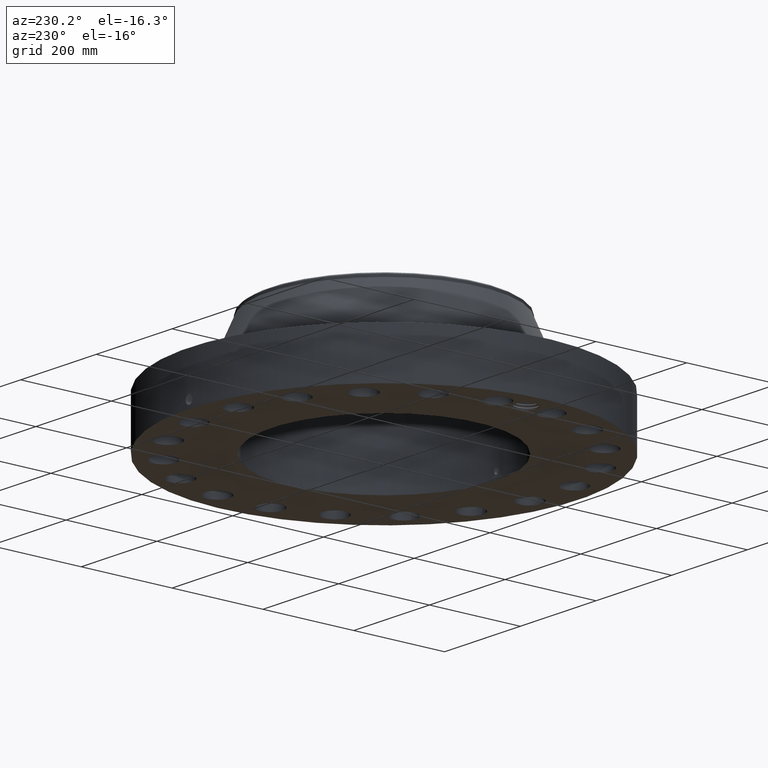
[diagram: clean part render]
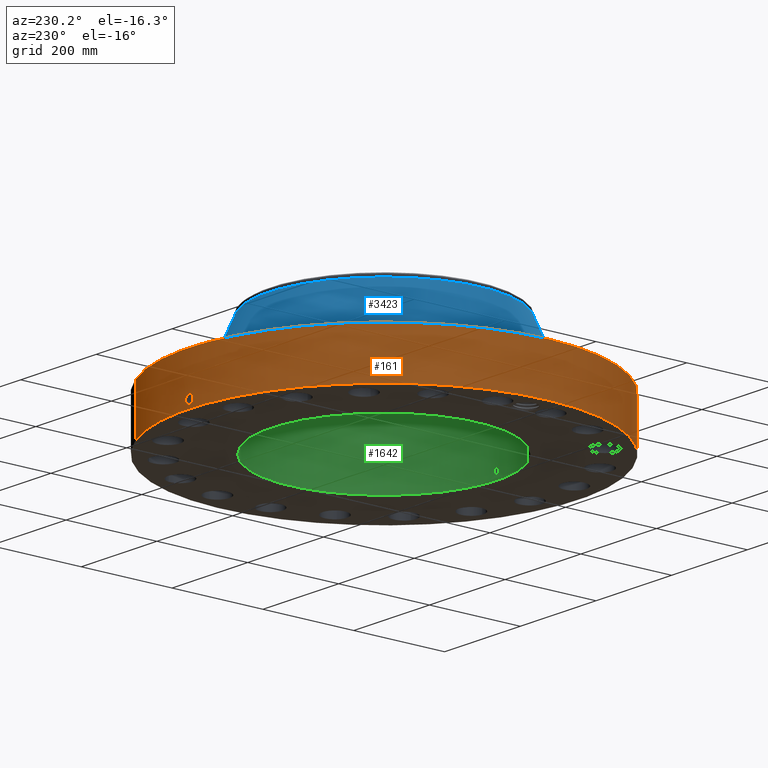
[diagram: same view with three faces highlighted in distinct colors, each labeled with its STEP entity id]
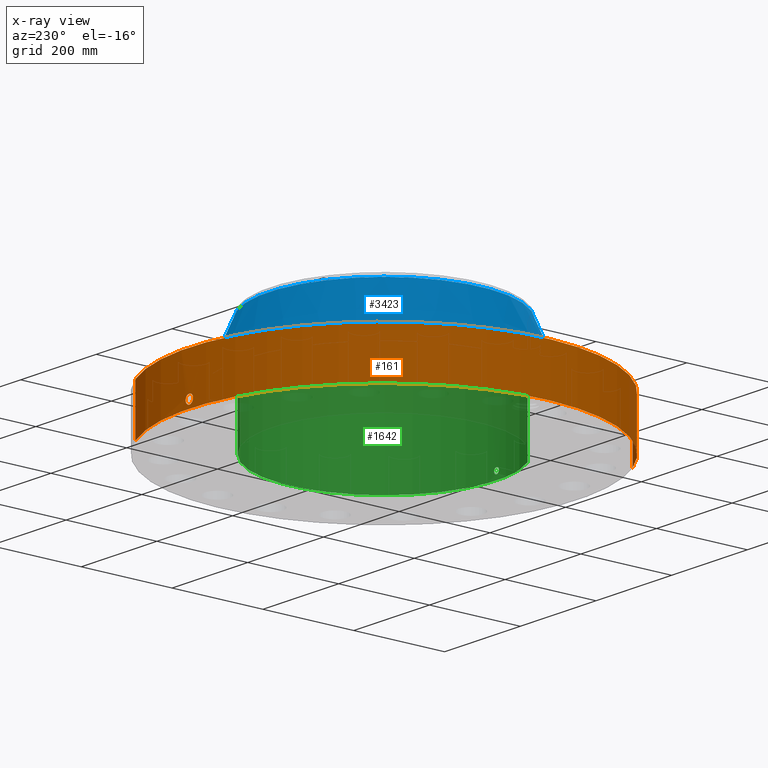
[diagram: x-ray of the same camera — body ghosted, the three highlighted faces saturated]
A machine part, auxiliary view with three faces highlighted in distinct colors.
The next image is the same camera in x-ray (body ghosted, the three faces saturated) — at least one of them is partly hidden behind the body in this view.
Their STEP definitions:

[orange] entity #161 — the highlighted cylindrical surface (partial cylindrical patch) has radius 428.625 mm, axis along (0, 0, -1).
#38=AXIS2_PLACEMENT_3D('Cylinder Axis2P3D',#35,#36,#37) ;
#42=AXIS2_PLACEMENT_3D('Circle Axis2P3D',#40,#41,$) ;
#58=AXIS2_PLACEMENT_3D('Circle Axis2P3D',#56,#57,$) ;
#35=CARTESIAN_POINT('Axis2P3D Location',(0.,0.,5.12500000002)) ;
#40=CARTESIAN_POINT('Axis2P3D Location',(0.,0.,0.250000000001)) ;
#44=CARTESIAN_POINT('Vertex',(-8.09030596398,-14.809205732,0.250000000001)) ;
#46=CARTESIAN_POINT('Vertex',(8.09030596398,14.809205732,0.250000000001)) ;
#49=CARTESIAN_POINT('Line Origine',(-8.09030596398,-14.809205732,2.37500000001)) ;
#53=CARTESIAN_POINT('Vertex',(-8.09030596398,-14.809205732,4.50000000002)) ;
#56=CARTESIAN_POINT('Axis2P3D Location',(0.,0.,4.50000000002)) ;
#60=CARTESIAN_POINT('Vertex',(8.09030596398,14.809205732,4.50000000002)) ;
#63=CARTESIAN_POINT('Line Origine',(8.09030596398,14.809205732,2.37500000001)) ;
#75=CARTESIAN_POINT('Control Point',(-0.000715966345755,16.8749999849,1.2941184615)) ;
#76=CARTESIAN_POINT('Control Point',(-0.0188587449881,16.8749992151,1.29408182617)) ;
#77=CARTESIAN_POINT('Control Point',(-0.0369983738352,16.8749689585,1.29264716763)) ;
#78=CARTESIAN_POINT('Control Point',(-0.0549211481594,16.874910627,1.28983155179)) ;
#79=CARTESIAN_POINT('Vertex',(-0.000715647544343,16.8749999849,1.29411851071)) ;
#81=CARTESIAN_POINT('Vertex',(-0.0549124867546,16.8749109068,1.28983293024)) ;
#85=CARTESIAN_POINT('Control Point',(-0.0549123924265,16.8749106555,1.28983238615)) ;
#86=CARTESIAN_POINT('Control Point',(-0.0954921253447,16.8747786056,1.28546586304)) ;
#87=CARTESIAN_POINT('Control Point',(-0.135448629343,16.8744965787,1.27372463292)) ;
#88=CARTESIAN_POINT('Control Point',(-0.172272160945,16.874120638,1.25537261567)) ;
#89=CARTESIAN_POINT('Vertex',(-0.172272160945,16.874120638,1.25537261567)) ;
#93=CARTESIAN_POINT('Control Point',(-0.0311176967246,16.8749713093,0.531196981948)) ;
#94=CARTESIAN_POINT('Control Point',(-0.0716971628149,16.8748964802,0.536329675347)) ;
#95=CARTESIAN_POINT('Control Point',(-0.111483887554,16.874701135,0.546717742949)) ;
#96=CARTESIAN_POINT('Control Point',(-0.149542289852,16.8743962607,0.562204334577)) ;
#97=CARTESIAN_POINT('Control Point',(-0.239358933954,16.8734348165,0.613172299099)) ;
#98=CARTESIAN_POINT('Control Point',(-0.308457455131,16.8722463849,0.690007880991)) ;
#99=CARTESIAN_POINT('Control Point',(-0.340329822535,16.8715879855,0.743761261318)) ;
#100=CARTESIAN_POINT('Control Point',(-0.374944138477,16.8708389442,0.841073392895)) ;
#101=CARTESIAN_POINT('Control Point',(-0.377318743419,16.8707797936,0.942367080266)) ;
#102=CARTESIAN_POINT('Control Point',(-0.372953924759,16.870879792,0.982925897651)) ;
#103=CARTESIAN_POINT('Control Point',(-0.350404708175,16.871382695,1.07569920771)) ;
#104=CARTESIAN_POINT('Control Point',(-0.300669425375,16.8723616565,1.15725850933)) ;
#105=CARTESIAN_POINT('Control Point',(-0.263812673009,16.8730156963,1.19834070171)) ;
#106=CARTESIAN_POINT('Control Point',(-0.220228293508,16.8736310417,1.23147235781)) ;
#107=CARTESIAN_POINT('Control Point',(-0.172272160945,16.874120638,1.25537261567)) ;
#108=CARTESIAN_POINT('Vertex',(-0.0311176967246,16.8749713093,0.531196981948)) ;
#112=CARTESIAN_POINT('Control Point',(-0.0311176967246,16.8749713093,0.531196981948)) ;
#113=CARTESIAN_POINT('Control Point',(-0.0207404090337,16.8749904452,0.530875685859)) ;
#114=CARTESIAN_POINT('Control Point',(-0.0103551827877,16.8750000017,0.530935093628)) ;
#115=CARTESIAN_POINT('Control Point',(2.72878355189E-006,16.8750000001,0.531374667806)) ;
#116=CARTESIAN_POINT('Vertex',(2.72878354257E-006,16.8750000001,0.531374667806)) ;
#120=CARTESIAN_POINT('Control Point',(0.19254051346,16.8739015392,0.587568175017)) ;
#121=CARTESIAN_POINT('Control Point',(0.148973082226,16.8743986675,0.562131731074)) ;
#122=CARTESIAN_POINT('Control Point',(0.101110473963,16.8747954933,0.543811579033)) ;
#123=CARTESIAN_POINT('Control Point',(0.0508033336883,16.8749999919,0.533530568523)) ;
#124=CARTESIAN_POINT('Control Point',(2.72878355189E-006,16.8750000001,0.531374667806)) ;
#125=CARTESIAN_POINT('Vertex',(0.19254051346,16.8739015392,0.587568175017)) ;
#129=CARTESIAN_POINT('Control Point',(0.19254051346,16.8739015392,0.587568175017)) ;
#130=CARTESIAN_POINT('Control Point',(0.249309488364,16.8732537739,0.620712216443)) ;
#131=CARTESIAN_POINT('Control Point',(0.2992627226,16.8724450136,0.665183203359)) ;
#132=CARTESIAN_POINT('Control Point',(0.339248744879,16.8716253423,0.719381497317)) ;
#133=CARTESIAN_POINT('Control Point',(0.383251893499,16.8706561065,0.817654652316)) ;
#134=CARTESIAN_POINT('Control Point',(0.391654931468,16.8704531723,0.922932638717)) ;
#135=CARTESIAN_POINT('Control Point',(0.389478215896,16.8705050932,0.963131364629)) ;
#136=CARTESIAN_POINT('Control Point',(0.369875477663,16.8709644816,1.06613732617)) ;
#137=CARTESIAN_POINT('Control Point',(0.316342965312,16.8720886067,1.15688810311)) ;
#138=CARTESIAN_POINT('Control Point',(0.271808791401,16.8729258459,1.20451035156)) ;
#139=CARTESIAN_POINT('Control Point',(0.190945062085,16.874075654,1.26057047138)) ;
#140=CARTESIAN_POINT('Control Point',(0.0989266658285,16.8747569291,1.28784304801)) ;
#141=CARTESIAN_POINT('Control Point',(0.0660321750554,16.8749199747,1.29367514866)) ;
#142=CARTESIAN_POINT('Control Point',(0.0328634725872,16.8750000504,1.2957655117)) ;
#143=CARTESIAN_POINT('Control Point',(-2.58579355401E-005,16.875,1.2941529843)) ;
#144=CARTESIAN_POINT('Vertex',(-2.58579355491E-005,16.875,1.2941529843)) ;
#148=CARTESIAN_POINT('Control Point',(-0.000715647534762,16.8749999849,1.29411851069)) ;
#149=CARTESIAN_POINT('Control Point',(-0.000370777338297,16.8749999995,1.29413607331)) ;
#150=CARTESIAN_POINT('Control Point',(-2.58579404822E-005,16.875,1.29415298429)) ;
#36=DIRECTION('Axis2P3D Direction',(0.,0.,-0.0393700787402)) ;
#37=DIRECTION('Axis2P3D XDirection',(0.0188750212049,0.0345504945626,0.)) ;
#41=DIRECTION('Axis2P3D Direction',(0.,0.,-0.0393700787402)) ;
#50=DIRECTION('Vector Direction',(0.,0.,-0.0393700787402)) ;
#57=DIRECTION('Axis2P3D Direction',(0.,0.,-0.0393700787402)) ;
#64=DIRECTION('Vector Direction',(0.,0.,-0.0393700787402)) ;
#51=VECTOR('Line Direction',#50,0.0393700787402) ;
#65=VECTOR('Line Direction',#64,0.0393700787402) ;
#69=ORIENTED_EDGE('',*,*,#48,.F.) ;
#70=ORIENTED_EDGE('',*,*,#55,.T.) ;
#71=ORIENTED_EDGE('',*,*,#62,.T.) ;
#72=ORIENTED_EDGE('',*,*,#67,.F.) ;
#153=ORIENTED_EDGE('',*,*,#83,.T.) ;
#154=ORIENTED_EDGE('',*,*,#91,.T.) ;
#155=ORIENTED_EDGE('',*,*,#110,.F.) ;
#156=ORIENTED_EDGE('',*,*,#118,.T.) ;
#157=ORIENTED_EDGE('',*,*,#127,.F.) ;
#158=ORIENTED_EDGE('',*,*,#146,.T.) ;
#159=ORIENTED_EDGE('',*,*,#151,.F.) ;
#160=FACE_BOUND('',#152,.T.) ;
#161=ADVANCED_FACE('PartBody',(#73,#160),#39,.T.) ;
#74=B_SPLINE_CURVE_WITH_KNOTS('',3,(#75,#76,#77,#78),.UNSPECIFIED.,.F.,.U.,(4,4),(34.6167109055,36.6294797056),.UNSPECIFIED.) ;
#84=B_SPLINE_CURVE_WITH_KNOTS('',3,(#85,#86,#87,#88),.UNSPECIFIED.,.F.,.U.,(4,4),(0.,4.58603306128),.UNSPECIFIED.) ;
#92=B_SPLINE_CURVE_WITH_KNOTS('',5,(#93,#94,#95,#96,#97,#98,#99,#100,#101,#102,#103,#104,#105,#106,#107),.UNSPECIFIED.,.F.,.U.,(6,3,3,3,6),(0.,7.10840572545,17.9965871632,25.3424692491,35.2966301703),.UNSPECIFIED.) ;
#111=B_SPLINE_CURVE_WITH_KNOTS('',3,(#112,#113,#114,#115),.UNSPECIFIED.,.F.,.U.,(4,4),(0.,1.08252290649),.UNSPECIFIED.) ;
#119=B_SPLINE_CURVE_WITH_KNOTS('',4,(#120,#121,#122,#123,#124),.UNSPECIFIED.,.F.,.U.,(5,5),(0.,7.07900983834),.UNSPECIFIED.) ;
#128=B_SPLINE_CURVE_WITH_KNOTS('',5,(#129,#130,#131,#132,#133,#134,#135,#136,#137,#138,#139,#140,#141,#142,#143),.UNSPECIFIED.,.F.,.U.,(6,3,3,3,6),(0.,11.5300613596,18.6226470864,30.1177972835,36.2654958823),.UNSPECIFIED.) ;
#147=B_SPLINE_CURVE_WITH_KNOTS('',2,(#148,#149,#150),.UNSPECIFIED.,.F.,.U.,(3,3),(1.01879612386,1.04458516299),.UNSPECIFIED.) ;
#43=CIRCLE('generated circle',#42,16.8750000001) ;
#59=CIRCLE('generated circle',#58,16.8750000001) ;
#39=CYLINDRICAL_SURFACE('generated cylinder',#38,16.8750000001) ;
#48=EDGE_CURVE('',#45,#47,#43,.T.) ;
#55=EDGE_CURVE('',#45,#54,#52,.F.) ;
#62=EDGE_CURVE('',#54,#61,#59,.T.) ;
#67=EDGE_CURVE('',#47,#61,#66,.F.) ;
#83=EDGE_CURVE('',#80,#82,#74,.T.) ;
#91=EDGE_CURVE('',#82,#90,#84,.T.) ;
#110=EDGE_CURVE('',#109,#90,#92,.T.) ;
#118=EDGE_CURVE('',#109,#117,#111,.T.) ;
#127=EDGE_CURVE('',#126,#117,#119,.T.) ;
#146=EDGE_CURVE('',#126,#145,#128,.T.) ;
#151=EDGE_CURVE('',#80,#145,#147,.T.) ;
#68=EDGE_LOOP('',(#69,#70,#71,#72)) ;
#152=EDGE_LOOP('',(#153,#154,#155,#156,#157,#158,#159)) ;
#73=FACE_OUTER_BOUND('',#68,.T.) ;
#52=LINE('Line',#49,#51) ;
#66=LINE('Line',#63,#65) ;
#45=VERTEX_POINT('',#44) ;
#47=VERTEX_POINT('',#46) ;
#54=VERTEX_POINT('',#53) ;
#61=VERTEX_POINT('',#60) ;
#80=VERTEX_POINT('',#79) ;
#82=VERTEX_POINT('',#81) ;
#90=VERTEX_POINT('',#89) ;
#109=VERTEX_POINT('',#108) ;
#117=VERTEX_POINT('',#116) ;
#126=VERTEX_POINT('',#125) ;
#145=VERTEX_POINT('',#144) ;

[blue] entity #3423 — the highlighted conical surface has half-angle 23.672 deg.
#2641=AXIS2_PLACEMENT_3D('Circle Axis2P3D',#2639,#2640,$) ;
#3384=AXIS2_PLACEMENT_3D('Cone Axis2P3D',#3381,#3382,#3383) ;
#3414=AXIS2_PLACEMENT_3D('Circle Axis2P3D',#3412,#3413,$) ;
#2617=CARTESIAN_POINT('Vertex',(5.85786806298,10.7227555647,4.57181926733)) ;
#2624=CARTESIAN_POINT('Vertex',(-5.85786806298,-10.7227555647,4.57181926733)) ;
#2639=CARTESIAN_POINT('Axis2P3D Location',(0.,0.,4.57181926733)) ;
#3381=CARTESIAN_POINT('Axis2P3D Location',(0.,0.,9.63236722848)) ;
#3386=CARTESIAN_POINT('Line Origine',(5.32606172452,9.74929059182,7.1020932479)) ;
#3390=CARTESIAN_POINT('Vertex',(4.79425538606,8.77582561894,9.63236722848)) ;
#3397=CARTESIAN_POINT('Vertex',(-4.79425538606,-8.77582561894,9.63236722848)) ;
#3400=CARTESIAN_POINT('Line Origine',(-5.32606172452,-9.74929059182,7.1020932479)) ;
#3412=CARTESIAN_POINT('Axis2P3D Location',(0.,0.,9.63236722848)) ;
#2640=DIRECTION('Axis2P3D Direction',(0.,0.,-0.0393700787402)) ;
#3382=DIRECTION('Axis2P3D Direction',(0.,0.,-0.0393700787402)) ;
#3383=DIRECTION('Axis2P3D XDirection',(-0.0188750212049,-0.0345504945626,0.)) ;
#3387=DIRECTION('Vector Direction',(0.0075784362599,0.0138722345235,-0.0360573364683)) ;
#3401=DIRECTION('Vector Direction',(-0.0075784362599,-0.0138722345235,-0.0360573364683)) ;
#3413=DIRECTION('Axis2P3D Direction',(0.,0.,-0.0393700787402)) ;
#3388=VECTOR('Line Direction',#3387,0.0393700787402) ;
#3402=VECTOR('Line Direction',#3401,0.0393700787402) ;
#3418=ORIENTED_EDGE('',*,*,#2643,.F.) ;
#3419=ORIENTED_EDGE('',*,*,#3404,.T.) ;
#3420=ORIENTED_EDGE('',*,*,#3416,.T.) ;
#3421=ORIENTED_EDGE('',*,*,#3392,.F.) ;
#3423=ADVANCED_FACE('PartBody',(#3422),#3385,.T.) ;
#2642=CIRCLE('generated circle',#2641,12.2185148502) ;
#3415=CIRCLE('generated circle',#3414,10.) ;
#3385=CONICAL_SURFACE('Cone',#3384,10.,0.413160732606) ;
#2643=EDGE_CURVE('',#2625,#2618,#2642,.T.) ;
#3392=EDGE_CURVE('',#2618,#3391,#3389,.F.) ;
#3404=EDGE_CURVE('',#2625,#3398,#3403,.F.) ;
#3416=EDGE_CURVE('',#3398,#3391,#3415,.T.) ;
#3417=EDGE_LOOP('',(#3418,#3419,#3420,#3421)) ;
#3422=FACE_OUTER_BOUND('',#3417,.T.) ;
#3389=LINE('Line',#3386,#3388) ;
#3403=LINE('Line',#3400,#3402) ;
#2618=VERTEX_POINT('',#2617) ;
#2625=VERTEX_POINT('',#2624) ;
#3391=VERTEX_POINT('',#3390) ;
#3398=VERTEX_POINT('',#3397) ;

[green] entity #1642 — the highlighted cylindrical surface (partial cylindrical patch) has radius 247.65 mm, axis along (0, 0, -1).
#262=AXIS2_PLACEMENT_3D('Circle Axis2P3D',#260,#261,$) ;
#1573=AXIS2_PLACEMENT_3D('Cylinder Axis2P3D',#1570,#1571,#1572) ;
#1577=AXIS2_PLACEMENT_3D('Circle Axis2P3D',#1575,#1576,$) ;
#260=CARTESIAN_POINT('Axis2P3D Location',(0.,0.,0.250000000001)) ;
#264=CARTESIAN_POINT('Vertex',(4.67439900141,8.55642997847,0.250000000001)) ;
#266=CARTESIAN_POINT('Vertex',(-4.67439900141,-8.55642997847,0.250000000001)) ;
#1570=CARTESIAN_POINT('Axis2P3D Location',(0.,0.,5.12500000002)) ;
#1575=CARTESIAN_POINT('Axis2P3D Location',(0.,0.,10.)) ;
#1579=CARTESIAN_POINT('Vertex',(4.67439900141,8.55642997847,10.)) ;
#1581=CARTESIAN_POINT('Vertex',(-4.67439900141,-8.55642997847,10.)) ;
#1584=CARTESIAN_POINT('Line Origine',(4.67439900141,8.55642997847,5.12500000002)) ;
#1589=CARTESIAN_POINT('Line Origine',(-4.67439900141,-8.55642997847,5.12500000002)) ;
#1601=CARTESIAN_POINT('Control Point',(0.219395640473,-9.74753125431,0.820143615352)) ;
#1602=CARTESIAN_POINT('Control Point',(0.194442898516,-9.74809288603,0.774467927575)) ;
#1603=CARTESIAN_POINT('Control Point',(0.15760471227,-9.74884214693,0.735287680649)) ;
#1604=CARTESIAN_POINT('Control Point',(0.111106567491,-9.74957085037,0.706756306257)) ;
#1605=CARTESIAN_POINT('Control Point',(0.0336712214842,-9.75015062135,0.684117106418)) ;
#1606=CARTESIAN_POINT('Control Point',(-0.044673667,-9.74995025307,0.691943982572)) ;
#1607=CARTESIAN_POINT('Control Point',(-0.0703041570795,-9.74979470742,0.69795706374)) ;
#1608=CARTESIAN_POINT('Control Point',(-0.143961199206,-9.74910736012,0.725790774483)) ;
#1609=CARTESIAN_POINT('Control Point',(-0.203249380166,-9.74798546212,0.780508459)) ;
#1610=CARTESIAN_POINT('Control Point',(-0.232213577166,-9.74724968436,0.826749817723)) ;
#1611=CARTESIAN_POINT('Control Point',(-0.255841176916,-9.74664491075,0.904895695644)) ;
#1612=CARTESIAN_POINT('Control Point',(-0.24828159803,-9.74683824784,0.984258136247)) ;
#1613=CARTESIAN_POINT('Control Point',(-0.242047849551,-9.74699998843,1.01081873189)) ;
#1614=CARTESIAN_POINT('Control Point',(-0.23231474778,-9.74724047342,1.03620811736)) ;
#1615=CARTESIAN_POINT('Control Point',(-0.219395640473,-9.74753125431,1.05985638466)) ;
#1616=CARTESIAN_POINT('Vertex',(0.219395640473,-9.74753125431,0.820143615352)) ;
#1618=CARTESIAN_POINT('Vertex',(-0.219395640473,-9.74753125431,1.05985638466)) ;
#1622=CARTESIAN_POINT('Control Point',(-0.219395640473,-9.74753125431,1.05985638466)) ;
#1623=CARTESIAN_POINT('Control Point',(-0.194442898521,-9.74809288603,1.10553207242)) ;
#1624=CARTESIAN_POINT('Control Point',(-0.157604712286,-9.74884214693,1.14471231934)) ;
#1625=CARTESIAN_POINT('Control Point',(-0.11110656747,-9.74957085037,1.17324369376)) ;
#1626=CARTESIAN_POINT('Control Point',(-0.0336712214743,-9.75015062135,1.19588289359)) ;
#1627=CARTESIAN_POINT('Control Point',(0.0446736669992,-9.74995025307,1.18805601744)) ;
#1628=CARTESIAN_POINT('Control Point',(0.0703041570763,-9.74979470742,1.18204293627)) ;
#1629=CARTESIAN_POINT('Control Point',(0.143961199258,-9.74910736012,1.15420922551)) ;
#1630=CARTESIAN_POINT('Control Point',(0.203249380251,-9.74798546212,1.09949154093)) ;
#1631=CARTESIAN_POINT('Control Point',(0.232213577131,-9.74724968436,1.0532501824)) ;
#1632=CARTESIAN_POINT('Control Point',(0.255841176927,-9.74664491075,0.975104304402)) ;
#1633=CARTESIAN_POINT('Control Point',(0.248281598027,-9.74683824784,0.895741863722)) ;
#1634=CARTESIAN_POINT('Control Point',(0.242047849565,-9.74699998843,0.869181268152)) ;
#1635=CARTESIAN_POINT('Control Point',(0.23231474779,-9.74724047342,0.84379188267)) ;
#1636=CARTESIAN_POINT('Control Point',(0.219395640473,-9.74753125431,0.820143615352)) ;
#261=DIRECTION('Axis2P3D Direction',(0.,0.,-0.0393700787402)) ;
#1571=DIRECTION('Axis2P3D Direction',(0.,0.,-0.0393700787402)) ;
#1572=DIRECTION('Axis2P3D XDirection',(-0.0188750212049,-0.0345504945626,0.)) ;
#1576=DIRECTION('Axis2P3D Direction',(0.,0.,-0.0393700787402)) ;
#1585=DIRECTION('Vector Direction',(0.,0.,-0.0393700787402)) ;
#1590=DIRECTION('Vector Direction',(0.,0.,-0.0393700787402)) ;
#1586=VECTOR('Line Direction',#1585,0.0393700787402) ;
#1591=VECTOR('Line Direction',#1590,0.0393700787402) ;
#1595=ORIENTED_EDGE('',*,*,#1583,.F.) ;
#1596=ORIENTED_EDGE('',*,*,#1588,.T.) ;
#1597=ORIENTED_EDGE('',*,*,#268,.T.) ;
#1598=ORIENTED_EDGE('',*,*,#1593,.F.) ;
#1639=ORIENTED_EDGE('',*,*,#1620,.F.) ;
#1640=ORIENTED_EDGE('',*,*,#1637,.F.) ;
#1641=FACE_BOUND('',#1638,.T.) ;
#1642=ADVANCED_FACE('PartBody',(#1599,#1641),#1574,.F.) ;
#1600=B_SPLINE_CURVE_WITH_KNOTS('',5,(#1601,#1602,#1603,#1604,#1605,#1606,#1607,#1608,#1609,#1610,#1611,#1612,#1613,#1614,#1615),.UNSPECIFIED.,.F.,.U.,(6,3,3,3,6),(0.,9.34848236236,14.0229320651,23.3729733373,28.2130845761),.UNSPECIFIED.) ;
#1621=B_SPLINE_CURVE_WITH_KNOTS('',5,(#1622,#1623,#1624,#1625,#1626,#1627,#1628,#1629,#1630,#1631,#1632,#1633,#1634,#1635,#1636),.UNSPECIFIED.,.F.,.U.,(6,3,3,3,6),(0.,9.34848236031,14.0229320632,23.3729733455,28.2130845881),.UNSPECIFIED.) ;
#263=CIRCLE('generated circle',#262,9.75000000004) ;
#1578=CIRCLE('generated circle',#1577,9.75000000004) ;
#1574=CYLINDRICAL_SURFACE('generated cylinder',#1573,9.75000000004) ;
#268=EDGE_CURVE('',#265,#267,#263,.T.) ;
#1583=EDGE_CURVE('',#1580,#1582,#1578,.T.) ;
#1588=EDGE_CURVE('',#1580,#265,#1587,.T.) ;
#1593=EDGE_CURVE('',#1582,#267,#1592,.T.) ;
#1620=EDGE_CURVE('',#1617,#1619,#1600,.T.) ;
#1637=EDGE_CURVE('',#1619,#1617,#1621,.T.) ;
#1594=EDGE_LOOP('',(#1595,#1596,#1597,#1598)) ;
#1638=EDGE_LOOP('',(#1639,#1640)) ;
#1599=FACE_OUTER_BOUND('',#1594,.T.) ;
#1587=LINE('Line',#1584,#1586) ;
#1592=LINE('Line',#1589,#1591) ;
#265=VERTEX_POINT('',#264) ;
#267=VERTEX_POINT('',#266) ;
#1580=VERTEX_POINT('',#1579) ;
#1582=VERTEX_POINT('',#1581) ;
#1617=VERTEX_POINT('',#1616) ;
#1619=VERTEX_POINT('',#1618) ;